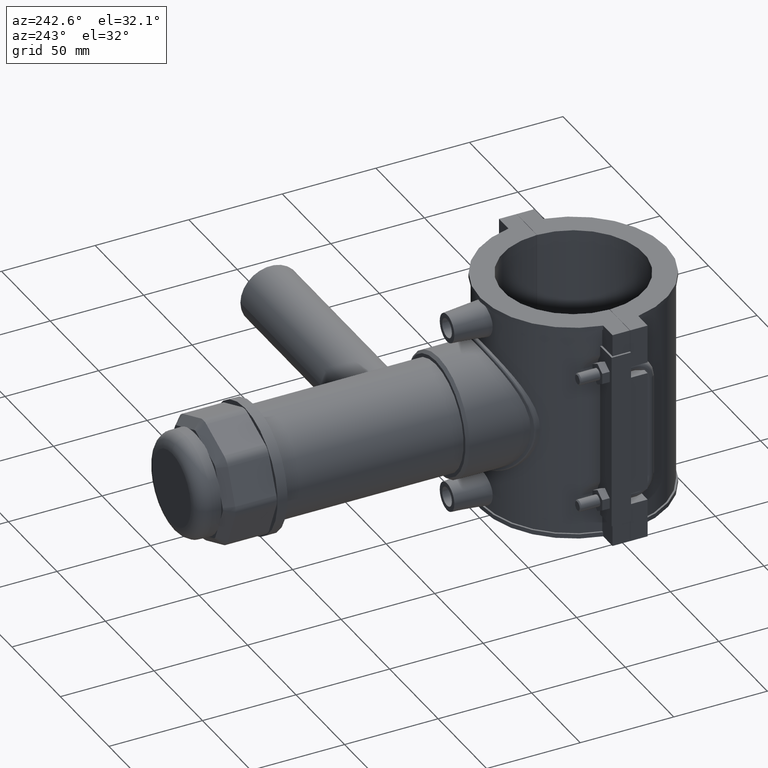
[diagram: clean part render]
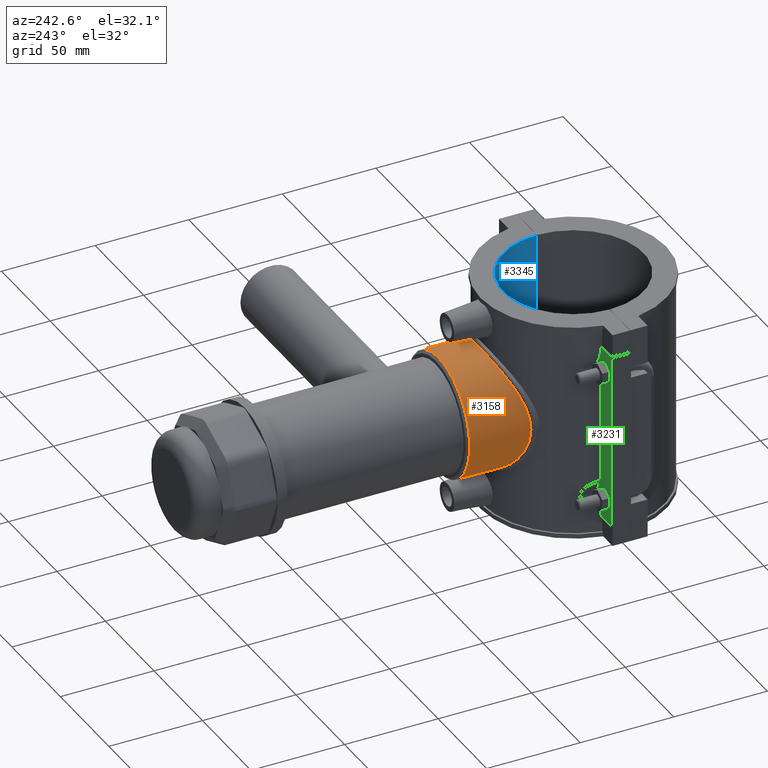
[diagram: same view with three faces highlighted in distinct colors, each labeled with its STEP entity id]
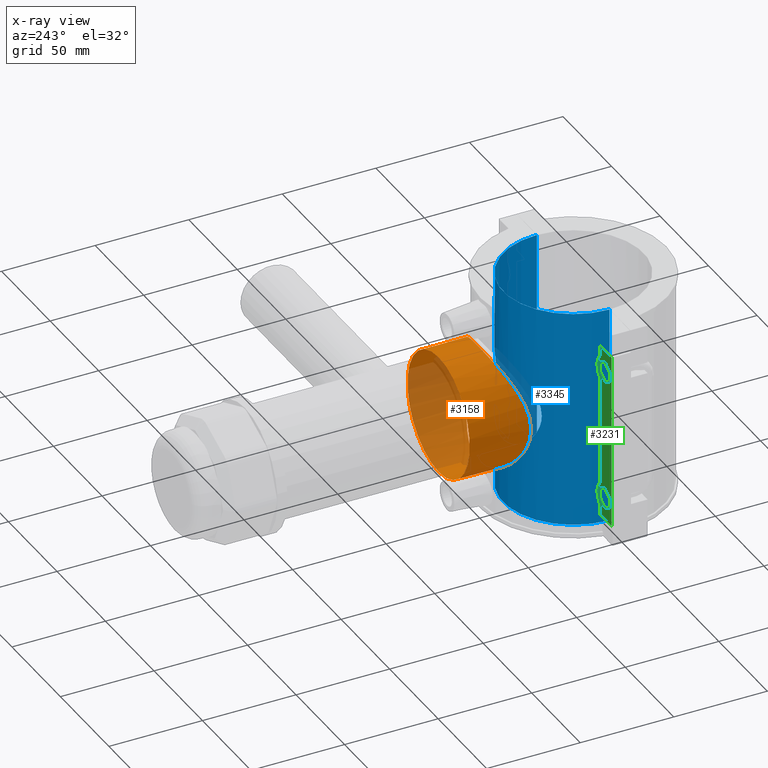
[diagram: x-ray of the same camera — body ghosted, the three highlighted faces saturated]
A machine part, auxiliary view with three faces highlighted in distinct colors.
The next image is the same camera in x-ray (body ghosted, the three faces saturated) — at least one of them is partly hidden behind the body in this view.
Their STEP definitions:

[orange] entity #3158 — the highlighted cylindrical surface (bore or boss wall) has radius 32.0625 mm, axis along (0, 1, 0).
#624=FACE_BOUND('',#973,.T.);
#682=B_SPLINE_CURVE_WITH_KNOTS('',3,(#4699,#4700,#4701,#4702,#4703,#4704,
#4705,#4706,#4707,#4708,#4709,#4710,#4711,#4712,#4713,#4714,#4715,#4716,
#4717,#4718,#4719,#4720,#4721,#4722,#4723,#4724,#4725,#4726,#4727,#4728,
#4729,#4730,#4731,#4732,#4733,#4734,#4735,#4736,#4737,#4738,#4739,#4740,
#4741,#4742,#4743,#4744,#4745,#4746,#4747,#4748,#4749,#4750,#4751,#4752,
#4753,#4754,#4755,#4756,#4757,#4758,#4759,#4760,#4761,#4762,#4763,#4764),
 .UNSPECIFIED.,.T.,.F.,(4,2,2,2,2,2,2,2,2,2,2,2,2,2,2,2,2,2,2,2,2,2,2,2,
2,2,2,2,2,2,2,2,4),(0.,0.628360994351361,1.25672198870272,1.88508298305408,
2.51344397740544,3.13653587147574,3.75962776554604,4.38271965961633,5.00581155368663,
5.62890344775693,6.25199534182722,6.87508723589752,7.49817912996782,8.12654012431918,
8.75490111867054,9.3832621130219,10.0116231073733,10.6399841017246,11.268345096076,
11.8967060904273,12.5250670847787,13.148158978849,13.7712508729193,14.3943427669896,
15.0174346610599,15.6405265551302,16.2636184492005,16.8867103432708,17.5098022373411,
18.1381632316924,18.7665242260438,19.3948852203952,20.0232462147465),
 .UNSPECIFIED.);
#728=CYLINDRICAL_SURFACE('',#3353,32.0625);
#778=FACE_OUTER_BOUND('',#972,.T.);
#972=EDGE_LOOP('',(#2106));
#973=EDGE_LOOP('',(#2107));
#1219=CIRCLE('',#3354,32.0625);
#1337=VERTEX_POINT('',#4696);
#1338=VERTEX_POINT('',#4698);
#1647=EDGE_CURVE('',#1337,#1337,#1219,.T.);
#1648=EDGE_CURVE('',#1338,#1338,#682,.T.);
#2106=ORIENTED_EDGE('',*,*,#1647,.F.);
#2107=ORIENTED_EDGE('',*,*,#1648,.F.);
#3158=ADVANCED_FACE('',(#778,#624),#728,.T.);
#3353=AXIS2_PLACEMENT_3D('',#4695,#3669,#3670);
#3354=AXIS2_PLACEMENT_3D('',#4697,#3671,#3672);
#3669=DIRECTION('center_axis',(0.,1.,3.06161699786838E-16));
#3670=DIRECTION('ref_axis',(0.,0.,1.));
#3671=DIRECTION('center_axis',(0.,1.,3.06161699786838E-16));
#3672=DIRECTION('ref_axis',(0.,0.,-1.));
#4695=CARTESIAN_POINT('Origin',(0.,36.725,-2.37275317334798E-16));
#4696=CARTESIAN_POINT('',(3.9265237997662E-15,72.,32.0625));
#4697=CARTESIAN_POINT('Origin',(0.,72.,1.05625786426459E-14));
#4698=CARTESIAN_POINT('',(32.0625,39.2744967345223,5.55111512312578E-16));
#4699=CARTESIAN_POINT('Ctrl Pts',(32.0625,39.2744967345223,5.55111512312578E-16));
#4700=CARTESIAN_POINT('Ctrl Pts',(32.0625,39.2744967345223,2.09453664783787));
#4701=CARTESIAN_POINT('Ctrl Pts',(31.8543134197258,39.4472032070929,4.22851295772181));
#4702=CARTESIAN_POINT('Ctrl Pts',(31.0105235645226,40.1139196541631,8.42170031889416));
#4703=CARTESIAN_POINT('Ctrl Pts',(30.3753963474478,40.6061039345306,10.4812972308141));
#4704=CARTESIAN_POINT('Ctrl Pts',(28.7258402205457,41.7893075648367,14.3996083222355));
#4705=CARTESIAN_POINT('Ctrl Pts',(27.710044263448,42.479537511854,16.2624594282473));
#4706=CARTESIAN_POINT('Ctrl Pts',(25.3813887556858,43.9106224600712,19.7002346445669));
#4707=CARTESIAN_POINT('Ctrl Pts',(24.0679870529102,44.6504111670735,21.2752352906772));
#4708=CARTESIAN_POINT('Ctrl Pts',(21.2869445543231,46.0407700485153,24.0562777892643));
#4709=CARTESIAN_POINT('Ctrl Pts',(19.7181117203239,46.7447237131586,25.3676408439805));
#4710=CARTESIAN_POINT('Ctrl Pts',(16.2790639798731,48.0506524483881,27.700418915249));
#4711=CARTESIAN_POINT('Ctrl Pts',(14.4086520233287,48.6518303424097,28.7219896330531));
#4712=CARTESIAN_POINT('Ctrl Pts',(10.473281220729,49.6479631367134,30.3788142788931));
#4713=CARTESIAN_POINT('Ctrl Pts',(8.40422800649635,50.0433230281396,31.0154174091996));
#4714=CARTESIAN_POINT('Ctrl Pts',(4.20612647830989,50.569494046861,31.8574271643325));
#4715=CARTESIAN_POINT('Ctrl Pts',(2.07697298023432,50.7,32.0625));
#4716=CARTESIAN_POINT('Ctrl Pts',(-2.07697298023432,50.7,32.0625));
#4717=CARTESIAN_POINT('Ctrl Pts',(-4.20612647830989,50.569494046861,31.8574271643325));
#4718=CARTESIAN_POINT('Ctrl Pts',(-8.40422800649635,50.0433230281396,31.0154174091996));
#4719=CARTESIAN_POINT('Ctrl Pts',(-10.473281220729,49.6479631367134,30.3788142788931));
#4720=CARTESIAN_POINT('Ctrl Pts',(-14.4086520233287,48.6518303424097,28.7219896330531));
#4721=CARTESIAN_POINT('Ctrl Pts',(-16.2790639798731,48.0506524483881,27.700418915249));
#4722=CARTESIAN_POINT('Ctrl Pts',(-19.7181117203239,46.7447237131586,25.3676408439805));
#4723=CARTESIAN_POINT('Ctrl Pts',(-21.2869445543231,46.0407700485153,24.0562777892643));
#4724=CARTESIAN_POINT('Ctrl Pts',(-24.0679870529102,44.6504111670735,21.2752352906772));
#4725=CARTESIAN_POINT('Ctrl Pts',(-25.3813887556858,43.9106224600712,19.7002346445669));
#4726=CARTESIAN_POINT('Ctrl Pts',(-27.710044263448,42.479537511854,16.2624594282473));
#4727=CARTESIAN_POINT('Ctrl Pts',(-28.7258402205457,41.7893075648367,14.3996083222355));
#4728=CARTESIAN_POINT('Ctrl Pts',(-30.3753963474478,40.6061039345306,10.4812972308142));
#4729=CARTESIAN_POINT('Ctrl Pts',(-31.0105235645226,40.1139196541631,8.42170031889417));
#4730=CARTESIAN_POINT('Ctrl Pts',(-31.8543134197259,39.4472032070929,4.22851295772182));
#4731=CARTESIAN_POINT('Ctrl Pts',(-32.0625,39.2744967345223,2.09453664783787));
#4732=CARTESIAN_POINT('Ctrl Pts',(-32.0625,39.2744967345223,-2.09453664783787));
#4733=CARTESIAN_POINT('Ctrl Pts',(-31.8543134197258,39.4472032070929,-4.22851295772182));
#4734=CARTESIAN_POINT('Ctrl Pts',(-31.0105235645226,40.1139196541631,-8.42170031889417));
#4735=CARTESIAN_POINT('Ctrl Pts',(-30.3753963474478,40.6061039345306,-10.4812972308141));
#4736=CARTESIAN_POINT('Ctrl Pts',(-28.7258402205457,41.7893075648367,-14.3996083222355));
#4737=CARTESIAN_POINT('Ctrl Pts',(-27.710044263448,42.479537511854,-16.2624594282473));
#4738=CARTESIAN_POINT('Ctrl Pts',(-25.3813887556858,43.9106224600712,-19.7002346445669));
#4739=CARTESIAN_POINT('Ctrl Pts',(-24.0679870529102,44.6504111670735,-21.2752352906772));
#4740=CARTESIAN_POINT('Ctrl Pts',(-21.2869445543231,46.0407700485153,-24.0562777892643));
#4741=CARTESIAN_POINT('Ctrl Pts',(-19.7181117203239,46.7447237131586,-25.3676408439805));
#4742=CARTESIAN_POINT('Ctrl Pts',(-16.2790639798731,48.0506524483881,-27.700418915249));
#4743=CARTESIAN_POINT('Ctrl Pts',(-14.4086520233287,48.6518303424097,-28.7219896330531));
#4744=CARTESIAN_POINT('Ctrl Pts',(-10.473281220729,49.6479631367134,-30.3788142788931));
#4745=CARTESIAN_POINT('Ctrl Pts',(-8.40422800649635,50.0433230281396,-31.0154174091996));
#4746=CARTESIAN_POINT('Ctrl Pts',(-4.20612647830989,50.569494046861,-31.8574271643325));
#4747=CARTESIAN_POINT('Ctrl Pts',(-2.07697298023433,50.7,-32.0625));
#4748=CARTESIAN_POINT('Ctrl Pts',(2.07697298023432,50.7,-32.0625));
#4749=CARTESIAN_POINT('Ctrl Pts',(4.20612647830989,50.569494046861,-31.8574271643325));
#4750=CARTESIAN_POINT('Ctrl Pts',(8.40422800649635,50.0433230281396,-31.0154174091996));
#4751=CARTESIAN_POINT('Ctrl Pts',(10.473281220729,49.6479631367134,-30.3788142788931));
#4752=CARTESIAN_POINT('Ctrl Pts',(14.4086520233288,48.6518303424097,-28.7219896330531));
#4753=CARTESIAN_POINT('Ctrl Pts',(16.2790639798731,48.0506524483881,-27.700418915249));
#4754=CARTESIAN_POINT('Ctrl Pts',(19.7181117203239,46.7447237131586,-25.3676408439805));
#4755=CARTESIAN_POINT('Ctrl Pts',(21.2869445543231,46.0407700485153,-24.0562777892643));
#4756=CARTESIAN_POINT('Ctrl Pts',(24.0679870529102,44.6504111670735,-21.2752352906772));
#4757=CARTESIAN_POINT('Ctrl Pts',(25.3813887556858,43.9106224600712,-19.7002346445669));
#4758=CARTESIAN_POINT('Ctrl Pts',(27.710044263448,42.479537511854,-16.2624594282473));
#4759=CARTESIAN_POINT('Ctrl Pts',(28.7258402205457,41.7893075648367,-14.3996083222355));
#4760=CARTESIAN_POINT('Ctrl Pts',(30.3753963474478,40.6061039345306,-10.4812972308141));
#4761=CARTESIAN_POINT('Ctrl Pts',(31.0105235645226,40.1139196541631,-8.42170031889416));
#4762=CARTESIAN_POINT('Ctrl Pts',(31.8543134197258,39.4472032070929,-4.22851295772181));
#4763=CARTESIAN_POINT('Ctrl Pts',(32.0625,39.2744967345223,-2.09453664783787));
#4764=CARTESIAN_POINT('Ctrl Pts',(32.0625,39.2744967345223,0.));

[blue] entity #3345 — the highlighted cylindrical surface (partial cylindrical patch) has radius 37.5 mm, axis along (0, 0, 1).
#275=LINE('',#6401,#562);
#322=LINE('',#6693,#609);
#562=VECTOR('',#4394,118.);
#609=VECTOR('',#4553,118.);
#679=FACE_BOUND('',#1215,.T.);
#680=B_SPLINE_CURVE_WITH_KNOTS('',3,(#4578,#4579,#4580,#4581,#4582,#4583,
#4584,#4585,#4586,#4587,#4588,#4589,#4590,#4591,#4592,#4593,#4594,#4595,
#4596,#4597,#4598,#4599,#4600,#4601,#4602,#4603,#4604,#4605,#4606,#4607,
#4608,#4609,#4610,#4611,#4612,#4613,#4614,#4615,#4616,#4617,#4618,#4619,
#4620,#4621,#4622,#4623,#4624,#4625,#4626,#4627,#4628,#4629,#4630,#4631,
#4632,#4633,#4634,#4635,#4636,#4637,#4638,#4639,#4640,#4641,#4642,#4643),
 .UNSPECIFIED.,.T.,.F.,(4,2,2,2,2,2,2,2,2,2,2,2,2,2,2,2,2,2,2,2,2,2,2,2,
2,2,2,2,2,2,2,2,4),(0.,0.462807746115,0.92561549223,1.388423238345,1.85123098446,
2.31023161788863,2.76923225131726,3.22823288474589,3.68723351817452,4.14623415160315,
4.60523478503178,5.06423541846041,5.52323605188905,5.98604379800405,6.44885154411905,
6.91165929023405,7.37446703634905,7.83727478246405,8.30008252857905,8.76289027469405,
9.22569802080905,9.68469865423768,10.1436992876663,10.6026999210949,11.0617005545236,
11.5207011879522,11.9797018213808,12.4387024548095,12.8977030882381,13.3605108343531,
13.8233185804681,14.2861263265831,14.7489340726981),.UNSPECIFIED.);
#775=CYLINDRICAL_SURFACE('',#3656,37.5);
#965=FACE_OUTER_BOUND('',#1214,.T.);
#1214=EDGE_LOOP('',(#3017,#3018,#3019,#3020));
#1215=EDGE_LOOP('',(#3021));
#1332=CIRCLE('',#3657,37.5);
#1333=CIRCLE('',#3658,37.5);
#1335=VERTEX_POINT('',#4577);
#1599=VERTEX_POINT('',#6398);
#1600=VERTEX_POINT('',#6400);
#1641=VERTEX_POINT('',#6690);
#1642=VERTEX_POINT('',#6692);
#1645=EDGE_CURVE('',#1335,#1335,#680,.T.);
#2021=EDGE_CURVE('',#1600,#1599,#275,.T.);
#2095=EDGE_CURVE('',#1642,#1641,#322,.T.);
#2100=EDGE_CURVE('',#1600,#1641,#1332,.T.);
#2101=EDGE_CURVE('',#1642,#1599,#1333,.T.);
#3017=ORIENTED_EDGE('',*,*,#2095,.T.);
#3018=ORIENTED_EDGE('',*,*,#2100,.F.);
#3019=ORIENTED_EDGE('',*,*,#2021,.T.);
#3020=ORIENTED_EDGE('',*,*,#2101,.F.);
#3021=ORIENTED_EDGE('',*,*,#1645,.T.);
#3345=ADVANCED_FACE('',(#965,#679),#775,.F.);
#3656=AXIS2_PLACEMENT_3D('',#6701,#4562,#4563);
#3657=AXIS2_PLACEMENT_3D('',#6702,#4564,#4565);
#3658=AXIS2_PLACEMENT_3D('',#6703,#4566,#4567);
#4394=DIRECTION('',(0.,0.,-1.));
#4553=DIRECTION('',(0.,0.,1.));
#4562=DIRECTION('center_axis',(0.,0.,1.));
#4563=DIRECTION('ref_axis',(-1.,0.,0.));
#4564=DIRECTION('center_axis',(0.,0.,-1.));
#4565=DIRECTION('ref_axis',(-1.,0.,0.));
#4566=DIRECTION('center_axis',(0.,0.,1.));
#4567=DIRECTION('ref_axis',(-1.,0.,0.));
#4577=CARTESIAN_POINT('',(-23.625,29.1223174730309,4.08006961549745E-14));
#4578=CARTESIAN_POINT('Ctrl Pts',(-23.625,29.1223174730309,4.08006961549745E-14));
#4579=CARTESIAN_POINT('Ctrl Pts',(-23.625,29.1223174730309,1.54269248705004));
#4580=CARTESIAN_POINT('Ctrl Pts',(-23.4717219223198,29.2486649775297,3.11474441862054));
#4581=CARTESIAN_POINT('Ctrl Pts',(-22.8501952187458,29.7367568856414,6.20418751461353));
#4582=CARTESIAN_POINT('Ctrl Pts',(-22.3822954963763,30.0971774261606,7.72185786580885));
#4583=CARTESIAN_POINT('Ctrl Pts',(-21.1668688353657,30.9640237249437,10.6093392039413));
#4584=CARTESIAN_POINT('Ctrl Pts',(-20.418336007456,31.4698730482701,11.9821958090445));
#4585=CARTESIAN_POINT('Ctrl Pts',(-18.7023056718838,32.518996254107,14.515688910244));
#4586=CARTESIAN_POINT('Ctrl Pts',(-17.7344122510781,33.0614828960146,15.6763831599863));
#4587=CARTESIAN_POINT('Ctrl Pts',(-15.6848479585202,34.0812988190438,17.7259474525442));
#4588=CARTESIAN_POINT('Ctrl Pts',(-14.5286064378956,34.5977594715381,18.6923731499932));
#4589=CARTESIAN_POINT('Ctrl Pts',(-11.9941746252867,35.5559438139942,20.4113937360051));
#4590=CARTESIAN_POINT('Ctrl Pts',(-10.6158403661594,35.9970796214786,21.1641039983853));
#4591=CARTESIAN_POINT('Ctrl Pts',(-7.71602207516126,36.728038593843,22.3847802517598));
#4592=CARTESIAN_POINT('Ctrl Pts',(-6.19152597756031,37.0181562344169,22.8537397635211));
#4593=CARTESIAN_POINT('Ctrl Pts',(-3.09855457541638,37.4042490164161,23.4739722814225));
#4594=CARTESIAN_POINT('Ctrl Pts',(-1.53000211142877,37.5,23.625));
#4595=CARTESIAN_POINT('Ctrl Pts',(1.53000211142876,37.5,23.625));
#4596=CARTESIAN_POINT('Ctrl Pts',(3.09855457541637,37.4042490164161,23.4739722814225));
#4597=CARTESIAN_POINT('Ctrl Pts',(6.19152597756031,37.0181562344169,22.8537397635211));
#4598=CARTESIAN_POINT('Ctrl Pts',(7.71602207516126,36.7280385938431,22.3847802517598));
#4599=CARTESIAN_POINT('Ctrl Pts',(10.6158403661594,35.9970796214786,21.1641039983853));
#4600=CARTESIAN_POINT('Ctrl Pts',(11.9941746252867,35.5559438139942,20.4113937360051));
#4601=CARTESIAN_POINT('Ctrl Pts',(14.5286064378956,34.5977594715381,18.6923731499932));
#4602=CARTESIAN_POINT('Ctrl Pts',(15.6848479585202,34.0812988190438,17.7259474525442));
#4603=CARTESIAN_POINT('Ctrl Pts',(17.7344122510781,33.0614828960146,15.6763831599863));
#4604=CARTESIAN_POINT('Ctrl Pts',(18.7023056718837,32.518996254107,14.515688910244));
#4605=CARTESIAN_POINT('Ctrl Pts',(20.418336007456,31.4698730482701,11.9821958090445));
#4606=CARTESIAN_POINT('Ctrl Pts',(21.1668688353657,30.9640237249437,10.6093392039413));
#4607=CARTESIAN_POINT('Ctrl Pts',(22.3822954963763,30.0971774261606,7.72185786580886));
#4608=CARTESIAN_POINT('Ctrl Pts',(22.8501952187458,29.7367568856414,6.20418751461354));
#4609=CARTESIAN_POINT('Ctrl Pts',(23.4717219223198,29.2486649775297,3.11474441862055));
#4610=CARTESIAN_POINT('Ctrl Pts',(23.625,29.1223174730309,1.54269248705004));
#4611=CARTESIAN_POINT('Ctrl Pts',(23.625,29.1223174730309,-1.54269248704996));
#4612=CARTESIAN_POINT('Ctrl Pts',(23.4717219223198,29.2486649775297,-3.11474441862046));
#4613=CARTESIAN_POINT('Ctrl Pts',(22.8501952187458,29.7367568856414,-6.20418751461344));
#4614=CARTESIAN_POINT('Ctrl Pts',(22.3822954963763,30.0971774261606,-7.72185786580876));
#4615=CARTESIAN_POINT('Ctrl Pts',(21.1668688353657,30.9640237249437,-10.6093392039412));
#4616=CARTESIAN_POINT('Ctrl Pts',(20.4183360074561,31.4698730482701,-11.9821958090444));
#4617=CARTESIAN_POINT('Ctrl Pts',(18.7023056718838,32.518996254107,-14.5156889102439));
#4618=CARTESIAN_POINT('Ctrl Pts',(17.7344122510781,33.0614828960146,-15.6763831599862));
#4619=CARTESIAN_POINT('Ctrl Pts',(15.6848479585202,34.0812988190438,-17.7259474525441));
#4620=CARTESIAN_POINT('Ctrl Pts',(14.5286064378956,34.5977594715381,-18.6923731499931));
#4621=CARTESIAN_POINT('Ctrl Pts',(11.9941746252867,35.5559438139942,-20.4113937360051));
#4622=CARTESIAN_POINT('Ctrl Pts',(10.6158403661594,35.9970796214786,-21.1641039983852));
#4623=CARTESIAN_POINT('Ctrl Pts',(7.71602207516126,36.728038593843,-22.3847802517597));
#4624=CARTESIAN_POINT('Ctrl Pts',(6.19152597756031,37.0181562344169,-22.853739763521));
#4625=CARTESIAN_POINT('Ctrl Pts',(3.09855457541638,37.4042490164161,-23.4739722814224));
#4626=CARTESIAN_POINT('Ctrl Pts',(1.53000211142877,37.5,-23.6249999999999));
#4627=CARTESIAN_POINT('Ctrl Pts',(-1.53000211142876,37.5,-23.6249999999999));
#4628=CARTESIAN_POINT('Ctrl Pts',(-3.09855457541636,37.4042490164161,-23.4739722814224));
#4629=CARTESIAN_POINT('Ctrl Pts',(-6.19152597756029,37.0181562344169,-22.853739763521));
#4630=CARTESIAN_POINT('Ctrl Pts',(-7.71602207516124,36.7280385938431,-22.3847802517597));
#4631=CARTESIAN_POINT('Ctrl Pts',(-10.6158403661593,35.9970796214786,-21.1641039983853));
#4632=CARTESIAN_POINT('Ctrl Pts',(-11.9941746252867,35.5559438139942,-20.4113937360051));
#4633=CARTESIAN_POINT('Ctrl Pts',(-14.5286064378956,34.5977594715381,-18.6923731499931));
#4634=CARTESIAN_POINT('Ctrl Pts',(-15.6848479585202,34.0812988190438,-17.7259474525441));
#4635=CARTESIAN_POINT('Ctrl Pts',(-17.7344122510781,33.0614828960146,-15.6763831599862));
#4636=CARTESIAN_POINT('Ctrl Pts',(-18.7023056718837,32.518996254107,-14.5156889102439));
#4637=CARTESIAN_POINT('Ctrl Pts',(-20.418336007456,31.4698730482701,-11.9821958090444));
#4638=CARTESIAN_POINT('Ctrl Pts',(-21.1668688353657,30.9640237249438,-10.6093392039412));
#4639=CARTESIAN_POINT('Ctrl Pts',(-22.3822954963763,30.0971774261606,-7.72185786580877));
#4640=CARTESIAN_POINT('Ctrl Pts',(-22.8501952187458,29.7367568856414,-6.20418751461345));
#4641=CARTESIAN_POINT('Ctrl Pts',(-23.4717219223198,29.2486649775297,-3.11474441862046));
#4642=CARTESIAN_POINT('Ctrl Pts',(-23.625,29.1223174730309,-1.54269248704996));
#4643=CARTESIAN_POINT('Ctrl Pts',(-23.625,29.1223174730309,4.16333634234434E-14));
#6398=CARTESIAN_POINT('',(-37.4999666666519,0.0500000000000078,-59.));
#6400=CARTESIAN_POINT('',(-37.4999666666519,0.0500000000000078,59.));
#6401=CARTESIAN_POINT('',(-37.4999666666519,0.0500000000000078,0.));
#6690=CARTESIAN_POINT('',(37.4999666666519,0.0500000000000078,59.));
#6692=CARTESIAN_POINT('',(37.4999666666519,0.0500000000000078,-59.));
#6693=CARTESIAN_POINT('',(37.4999666666519,0.0500000000000078,0.));
#6701=CARTESIAN_POINT('Origin',(0.,0.,0.));
#6702=CARTESIAN_POINT('Origin',(0.,0.,59.));
#6703=CARTESIAN_POINT('Origin',(0.,0.,-59.));

[green] entity #3231 — the highlighted planar face has unit normal (-0, -1, 0).
#137=LINE('',#5547,#424);
#138=LINE('',#5563,#425);
#139=LINE('',#5577,#426);
#156=LINE('',#5741,#443);
#157=LINE('',#5744,#444);
#161=LINE('',#5751,#448);
#162=LINE('',#5784,#449);
#163=LINE('',#5786,#450);
#164=LINE('',#5788,#451);
#165=LINE('',#5790,#452);
#166=LINE('',#5792,#453);
#167=LINE('',#5793,#454);
#168=LINE('',#5796,#455);
#169=LINE('',#5798,#456);
#170=LINE('',#5800,#457);
#171=LINE('',#5802,#458);
#172=LINE('',#5804,#459);
#173=LINE('',#5805,#460);
#424=VECTOR('',#4034,4.46607892172985);
#425=VECTOR('',#4035,56.1321578434597);
#426=VECTOR('',#4036,4.46607892172984);
#443=VECTOR('',#4069,11.8667986064342);
#444=VECTOR('',#4072,11.8667986064342);
#448=VECTOR('',#4078,94.4);
#449=VECTOR('',#4083,5.77350269189626);
#450=VECTOR('',#4084,5.77350269189626);
#451=VECTOR('',#4085,5.77350269189625);
#452=VECTOR('',#4086,5.77350269189626);
#453=VECTOR('',#4087,5.77350269189625);
#454=VECTOR('',#4088,5.77350269189626);
#455=VECTOR('',#4089,5.77350269189627);
#456=VECTOR('',#4090,5.77350269189626);
#457=VECTOR('',#4091,5.77350269189626);
#458=VECTOR('',#4092,5.77350269189626);
#459=VECTOR('',#4093,5.77350269189626);
#460=VECTOR('',#4094,5.77350269189624);
#644=FACE_BOUND('',#1066,.T.);
#645=FACE_BOUND('',#1067,.T.);
#699=B_SPLINE_CURVE_WITH_KNOTS('',3,(#5753,#5754,#5755,#5756,#5757,#5758),
 .UNSPECIFIED.,.F.,.F.,(4,2,4),(-0.281341691516308,-0.141623354296894,0.),
 .UNSPECIFIED.);
#700=B_SPLINE_CURVE_WITH_KNOTS('',3,(#5761,#5762,#5763,#5764,#5765,#5766),
 .UNSPECIFIED.,.F.,.F.,(4,2,4),(-0.281664898277297,-0.139591039339696,0.),
 .UNSPECIFIED.);
#701=B_SPLINE_CURVE_WITH_KNOTS('',3,(#5768,#5769,#5770,#5771,#5772,#5773),
 .UNSPECIFIED.,.F.,.F.,(4,2,4),(-0.281341691516304,-0.141623354296958,0.),
 .UNSPECIFIED.);
#702=B_SPLINE_CURVE_WITH_KNOTS('',3,(#5776,#5777,#5778,#5779,#5780,#5781),
 .UNSPECIFIED.,.F.,.F.,(4,2,4),(-0.281664898277248,-0.139591039340112,0.),
 .UNSPECIFIED.);
#851=FACE_OUTER_BOUND('',#1065,.T.);
#1065=EDGE_LOOP('',(#2464,#2465,#2466,#2467,#2468,#2469,#2470,#2471,#2472,
#2473,#2474,#2475));
#1066=EDGE_LOOP('',(#2476,#2477,#2478,#2479,#2480,#2481));
#1067=EDGE_LOOP('',(#2482,#2483,#2484,#2485,#2486,#2487));
#1282=CIRCLE('',#3497,7.5);
#1283=CIRCLE('',#3498,7.5);
#1459=VERTEX_POINT('',#5544);
#1460=VERTEX_POINT('',#5546);
#1461=VERTEX_POINT('',#5548);
#1462=VERTEX_POINT('',#5562);
#1463=VERTEX_POINT('',#5564);
#1464=VERTEX_POINT('',#5576);
#1487=VERTEX_POINT('',#5739);
#1488=VERTEX_POINT('',#5743);
#1491=VERTEX_POINT('',#5752);
#1492=VERTEX_POINT('',#5759);
#1493=VERTEX_POINT('',#5767);
#1494=VERTEX_POINT('',#5774);
#1495=VERTEX_POINT('',#5782);
#1496=VERTEX_POINT('',#5783);
#1497=VERTEX_POINT('',#5785);
#1498=VERTEX_POINT('',#5787);
#1499=VERTEX_POINT('',#5789);
#1500=VERTEX_POINT('',#5791);
#1501=VERTEX_POINT('',#5794);
#1502=VERTEX_POINT('',#5795);
#1503=VERTEX_POINT('',#5797);
#1504=VERTEX_POINT('',#5799);
#1505=VERTEX_POINT('',#5801);
#1506=VERTEX_POINT('',#5803);
#1819=EDGE_CURVE('',#1459,#1460,#137,.T.);
#1821=EDGE_CURVE('',#1461,#1462,#138,.T.);
#1823=EDGE_CURVE('',#1463,#1464,#139,.T.);
#1851=EDGE_CURVE('',#1459,#1487,#156,.T.);
#1852=EDGE_CURVE('',#1488,#1464,#157,.T.);
#1856=EDGE_CURVE('',#1487,#1488,#161,.T.);
#1857=EDGE_CURVE('',#1491,#1463,#699,.T.);
#1858=EDGE_CURVE('',#1492,#1491,#1282,.T.);
#1859=EDGE_CURVE('',#1462,#1492,#700,.T.);
#1860=EDGE_CURVE('',#1493,#1461,#701,.T.);
#1861=EDGE_CURVE('',#1494,#1493,#1283,.T.);
#1862=EDGE_CURVE('',#1460,#1494,#702,.T.);
#1863=EDGE_CURVE('',#1495,#1496,#162,.T.);
#1864=EDGE_CURVE('',#1497,#1495,#163,.T.);
#1865=EDGE_CURVE('',#1498,#1497,#164,.T.);
#1866=EDGE_CURVE('',#1499,#1498,#165,.T.);
#1867=EDGE_CURVE('',#1500,#1499,#166,.T.);
#1868=EDGE_CURVE('',#1496,#1500,#167,.T.);
#1869=EDGE_CURVE('',#1501,#1502,#168,.T.);
#1870=EDGE_CURVE('',#1503,#1501,#169,.T.);
#1871=EDGE_CURVE('',#1504,#1503,#170,.T.);
#1872=EDGE_CURVE('',#1505,#1504,#171,.T.);
#1873=EDGE_CURVE('',#1506,#1505,#172,.T.);
#1874=EDGE_CURVE('',#1502,#1506,#173,.T.);
#2464=ORIENTED_EDGE('',*,*,#1819,.F.);
#2465=ORIENTED_EDGE('',*,*,#1851,.T.);
#2466=ORIENTED_EDGE('',*,*,#1856,.T.);
#2467=ORIENTED_EDGE('',*,*,#1852,.T.);
#2468=ORIENTED_EDGE('',*,*,#1823,.F.);
#2469=ORIENTED_EDGE('',*,*,#1857,.F.);
#2470=ORIENTED_EDGE('',*,*,#1858,.F.);
#2471=ORIENTED_EDGE('',*,*,#1859,.F.);
#2472=ORIENTED_EDGE('',*,*,#1821,.F.);
#2473=ORIENTED_EDGE('',*,*,#1860,.F.);
#2474=ORIENTED_EDGE('',*,*,#1861,.F.);
#2475=ORIENTED_EDGE('',*,*,#1862,.F.);
#2476=ORIENTED_EDGE('',*,*,#1863,.F.);
#2477=ORIENTED_EDGE('',*,*,#1864,.F.);
#2478=ORIENTED_EDGE('',*,*,#1865,.F.);
#2479=ORIENTED_EDGE('',*,*,#1866,.F.);
#2480=ORIENTED_EDGE('',*,*,#1867,.F.);
#2481=ORIENTED_EDGE('',*,*,#1868,.F.);
#2482=ORIENTED_EDGE('',*,*,#1869,.F.);
#2483=ORIENTED_EDGE('',*,*,#1870,.F.);
#2484=ORIENTED_EDGE('',*,*,#1871,.F.);
#2485=ORIENTED_EDGE('',*,*,#1872,.F.);
#2486=ORIENTED_EDGE('',*,*,#1873,.F.);
#2487=ORIENTED_EDGE('',*,*,#1874,.F.);
#3078=PLANE('',#3496);
#3231=ADVANCED_FACE('',(#851,#644,#645),#3078,.F.);
#3496=AXIS2_PLACEMENT_3D('',#5750,#4076,#4077);
#3497=AXIS2_PLACEMENT_3D('',#5760,#4079,#4080);
#3498=AXIS2_PLACEMENT_3D('',#5775,#4081,#4082);
#4034=DIRECTION('',(0.,0.,1.));
#4035=DIRECTION('',(0.,0.,1.));
#4036=DIRECTION('',(0.,0.,1.));
#4069=DIRECTION('',(-1.,2.21752824892278E-16,0.));
#4072=DIRECTION('',(1.,-2.21752824892278E-16,0.));
#4076=DIRECTION('center_axis',(-2.21752824892278E-16,-1.,0.));
#4077=DIRECTION('ref_axis',(1.,-1.77635683940025E-16,0.));
#4078=DIRECTION('',(0.,0.,1.));
#4079=DIRECTION('center_axis',(-2.21752824892278E-16,-1.,0.));
#4080=DIRECTION('ref_axis',(1.,0.,0.));
#4081=DIRECTION('center_axis',(-2.21752824892278E-16,-1.,0.));
#4082=DIRECTION('ref_axis',(1.,0.,0.));
#4083=DIRECTION('',(-0.866025403784439,1.92043579717675E-16,0.5));
#4084=DIRECTION('',(-0.866025403784438,1.92043579717675E-16,-0.5));
#4085=DIRECTION('',(0.,0.,-1.));
#4086=DIRECTION('',(0.866025403784439,-1.92043579717675E-16,-0.5));
#4087=DIRECTION('',(0.866025403784439,-1.92043579717675E-16,0.499999999999999));
#4088=DIRECTION('',(0.,0.,1.));
#4089=DIRECTION('',(-0.866025403784439,1.92043579717675E-16,-0.499999999999999));
#4090=DIRECTION('',(0.,0.,-1.));
#4091=DIRECTION('',(0.866025403784438,-1.92043579717675E-16,-0.5));
#4092=DIRECTION('',(0.866025403784438,-1.92043579717675E-16,0.5));
#4093=DIRECTION('',(0.,0.,1.));
#4094=DIRECTION('',(-0.866025403784438,1.92043579717675E-16,0.500000000000002));
#5544=CARTESIAN_POINT('',(-47.6332013935658,10.3750000000001,-47.2));
#5546=CARTESIAN_POINT('',(-47.6332013935658,10.3750000000001,-42.7339210782702));
#5547=CARTESIAN_POINT('',(-47.6332013935658,10.3750000000001,0.));
#5548=CARTESIAN_POINT('',(-47.6332013935658,10.3750000000001,-28.0660789217298));
#5562=CARTESIAN_POINT('',(-47.6332013935658,10.3750000000001,28.0660789217298));
#5563=CARTESIAN_POINT('',(-47.6332013935658,10.3750000000001,0.));
#5564=CARTESIAN_POINT('',(-47.6332013935658,10.3750000000001,42.7339210782702));
#5576=CARTESIAN_POINT('',(-47.6332013935658,10.3750000000001,47.2));
#5577=CARTESIAN_POINT('',(-47.6332013935658,10.3750000000001,0.));
#5739=CARTESIAN_POINT('',(-59.5,10.3750000000001,-47.2));
#5741=CARTESIAN_POINT('',(-59.5,10.3750000000001,-47.2));
#5743=CARTESIAN_POINT('',(-59.5,10.3750000000001,47.2));
#5744=CARTESIAN_POINT('',(-59.5,10.3750000000001,47.2));
#5750=CARTESIAN_POINT('Origin',(-59.5,10.3750000000001,0.));
#5751=CARTESIAN_POINT('',(-59.5,10.3750000000001,0.));
#5752=CARTESIAN_POINT('',(-46.6917749070217,10.3750000000001,40.1449469195448));
#5753=CARTESIAN_POINT('Ctrl Pts',(-46.6917749070217,10.3750000000001,40.1449469195447));
#5754=CARTESIAN_POINT('Ctrl Pts',(-46.9867600894085,10.3750000000001,40.5060342757254));
#5755=CARTESIAN_POINT('Ctrl Pts',(-47.2216357502822,10.3750000000373,40.9133637162786));
#5756=CARTESIAN_POINT('Ctrl Pts',(-47.5469390920101,10.3750000000373,41.7937134726198));
#5757=CARTESIAN_POINT('Ctrl Pts',(-47.6332013935658,10.3750000000001,42.2618432306138));
#5758=CARTESIAN_POINT('Ctrl Pts',(-47.6332013935658,10.3750000000001,42.7339210782702));
#5759=CARTESIAN_POINT('',(-46.6917749070217,10.3750000000001,30.6550530804553));
#5760=CARTESIAN_POINT('Origin',(-52.5,10.3750000000001,35.4));
#5761=CARTESIAN_POINT('Ctrl Pts',(-47.6332013935658,10.3750000000001,28.0660789217298));
#5762=CARTESIAN_POINT('Ctrl Pts',(-47.6332013935658,10.3750000000001,28.5391150085961));
#5763=CARTESIAN_POINT('Ctrl Pts',(-47.5465890169901,10.3749999997142,29.008179282616));
#5764=CARTESIAN_POINT('Ctrl Pts',(-47.2206731564448,10.3749999997142,29.8883067758346));
#5765=CARTESIAN_POINT('Ctrl Pts',(-46.9861536057377,10.3750000000001,30.2947081127007));
#5766=CARTESIAN_POINT('Ctrl Pts',(-46.6917749070217,10.3750000000001,30.6550530804553));
#5767=CARTESIAN_POINT('',(-46.6917749070217,10.3750000000001,-30.6550530804553));
#5768=CARTESIAN_POINT('Ctrl Pts',(-46.6917749070217,10.3750000000001,-30.6550530804553));
#5769=CARTESIAN_POINT('Ctrl Pts',(-46.9867600894084,10.3750000000001,-30.2939657242748));
#5770=CARTESIAN_POINT('Ctrl Pts',(-47.221635750282,10.3750000000373,-29.8866362837218));
#5771=CARTESIAN_POINT('Ctrl Pts',(-47.54693909201,10.3750000000373,-29.0062865273806));
#5772=CARTESIAN_POINT('Ctrl Pts',(-47.6332013935658,10.3750000000001,-28.5381567693864));
#5773=CARTESIAN_POINT('Ctrl Pts',(-47.6332013935658,10.3750000000001,-28.0660789217299));
#5774=CARTESIAN_POINT('',(-46.6917749070217,10.3750000000001,-40.1449469195447));
#5775=CARTESIAN_POINT('Origin',(-52.5,10.3750000000001,-35.4));
#5776=CARTESIAN_POINT('Ctrl Pts',(-47.6332013935658,10.3750000000001,-42.7339210782702));
#5777=CARTESIAN_POINT('Ctrl Pts',(-47.6332013935658,10.3750000000001,-42.2608849914054));
#5778=CARTESIAN_POINT('Ctrl Pts',(-47.5465890169907,10.3749999997142,-41.7918207173869));
#5779=CARTESIAN_POINT('Ctrl Pts',(-47.2206731564463,10.3749999997142,-40.9116932241679));
#5780=CARTESIAN_POINT('Ctrl Pts',(-46.9861536057385,10.3750000000001,-40.5052918873004));
#5781=CARTESIAN_POINT('Ctrl Pts',(-46.6917749070217,10.3750000000001,-40.1449469195447));
#5782=CARTESIAN_POINT('',(-52.5000000000001,10.3750000000001,29.6264973081037));
#5783=CARTESIAN_POINT('',(-57.5000000000001,10.3750000000001,32.5132486540519));
#5784=CARTESIAN_POINT('',(-51.2106751765078,10.3750000000001,28.8821052741876));
#5785=CARTESIAN_POINT('',(-47.5000000000001,10.3750000000001,32.5132486540519));
#5786=CARTESIAN_POINT('',(-61.5393248234923,10.3750000000001,24.407640687968));
#5787=CARTESIAN_POINT('',(-47.5000000000001,10.3750000000001,38.2867513459481));
#5788=CARTESIAN_POINT('',(-47.5000000000001,10.3750000000001,16.2566243270259));
#5789=CARTESIAN_POINT('',(-52.5000000000001,10.3750000000001,41.1735026918963));
#5790=CARTESIAN_POINT('',(-43.7106751765078,10.3750000000001,36.0989836390579));
#5791=CARTESIAN_POINT('',(-57.5000000000001,10.3750000000001,38.2867513459481));
#5792=CARTESIAN_POINT('',(-64.0393248234923,10.3750000000001,34.5112703987865));
#5793=CARTESIAN_POINT('',(-57.5000000000001,10.3750000000001,19.1433756729741));
#5794=CARTESIAN_POINT('',(-47.5,10.3750000000001,-38.2867513459481));
#5795=CARTESIAN_POINT('',(-52.5000000000001,10.3750000000001,-41.1735026918963));
#5796=CARTESIAN_POINT('',(-46.2106751765078,10.3750000000001,-37.542359312032));
#5797=CARTESIAN_POINT('',(-47.5,10.3750000000001,-32.5132486540519));
#5798=CARTESIAN_POINT('',(-47.5,10.3750000000001,-19.1433756729741));
#5799=CARTESIAN_POINT('',(-52.5,10.3750000000001,-29.6264973081037));
#5800=CARTESIAN_POINT('',(-59.0393248234923,10.3750000000001,-25.8510163609421));
#5801=CARTESIAN_POINT('',(-57.5,10.3750000000001,-32.5132486540519));
#5802=CARTESIAN_POINT('',(-48.7106751765077,10.3750000000001,-27.4387296012135));
#5803=CARTESIAN_POINT('',(-57.5,10.3750000000001,-38.2867513459481));
#5804=CARTESIAN_POINT('',(-57.5,10.3750000000001,-16.2566243270259));
#5805=CARTESIAN_POINT('',(-66.5393248234923,10.3750000000001,-33.0678947258124));